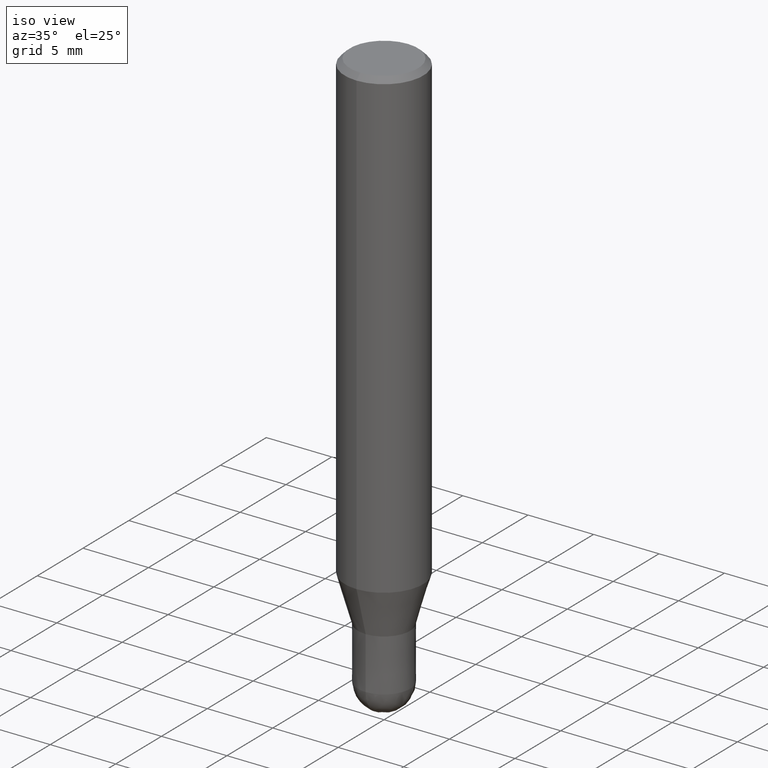
[diagram: clean part render]
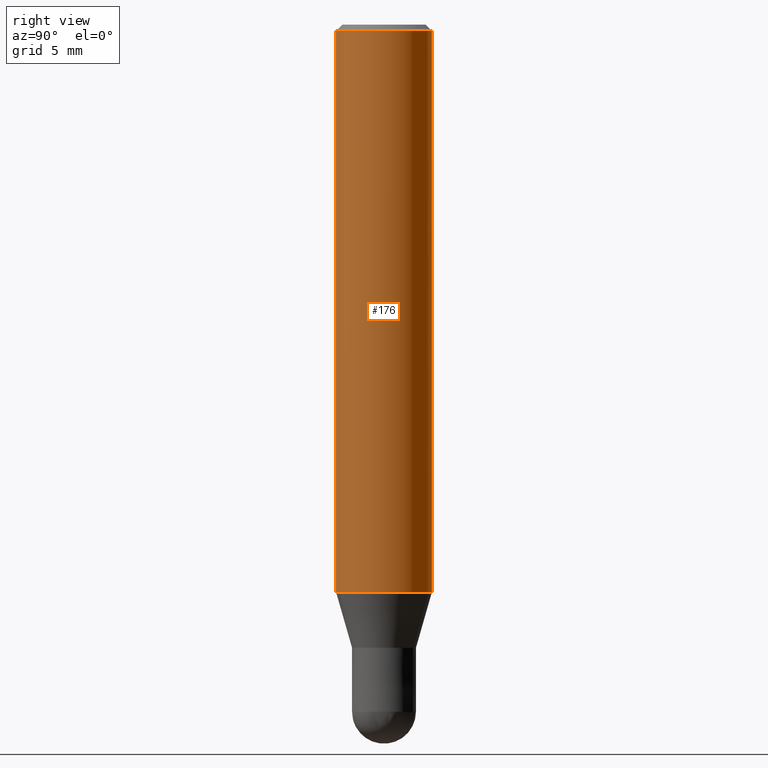
[diagram: tour spotlight — one face highlighted and labeled with its STEP entity id]
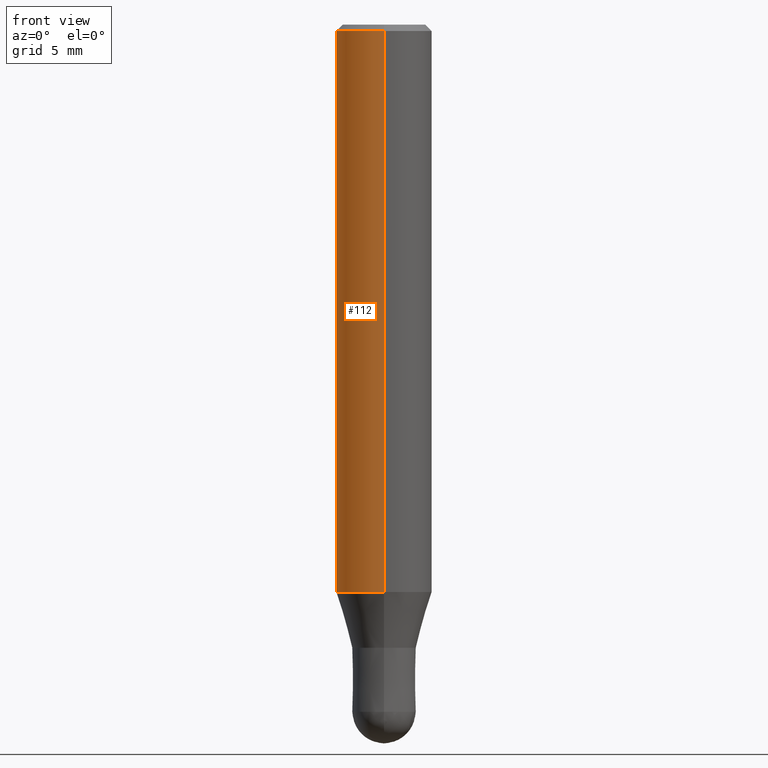
[diagram: tour spotlight — one face highlighted and labeled with its STEP entity id]
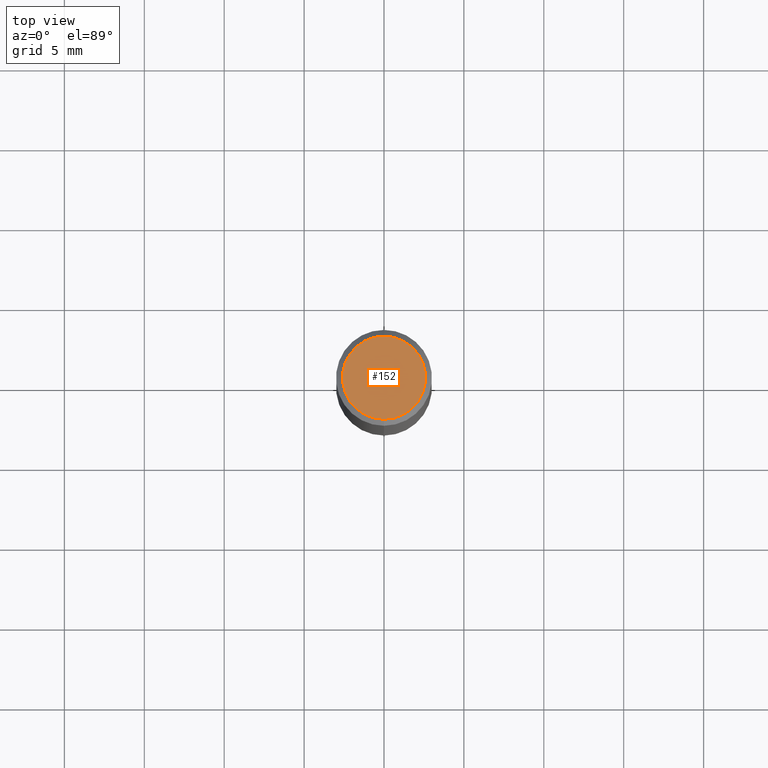
[diagram: tour spotlight — one face highlighted and labeled with its STEP entity id]
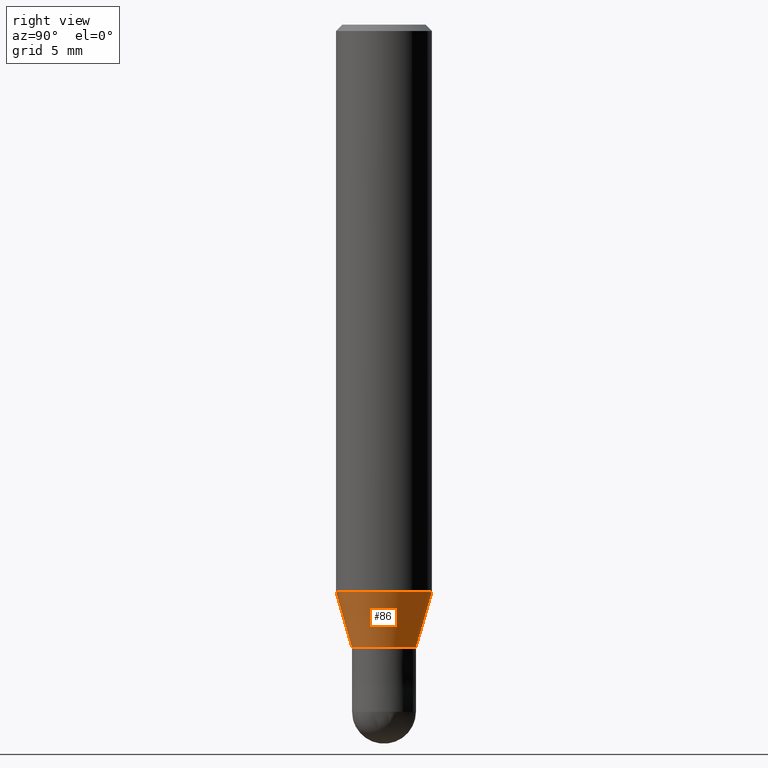
[diagram: tour spotlight — one face highlighted and labeled with its STEP entity id]
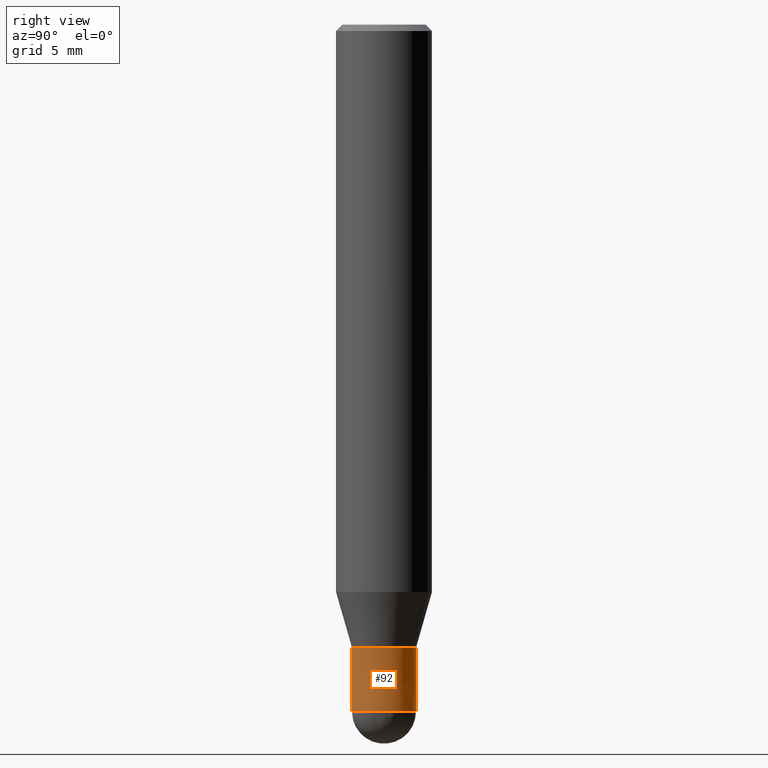
[diagram: tour spotlight — one face highlighted and labeled with its STEP entity id]
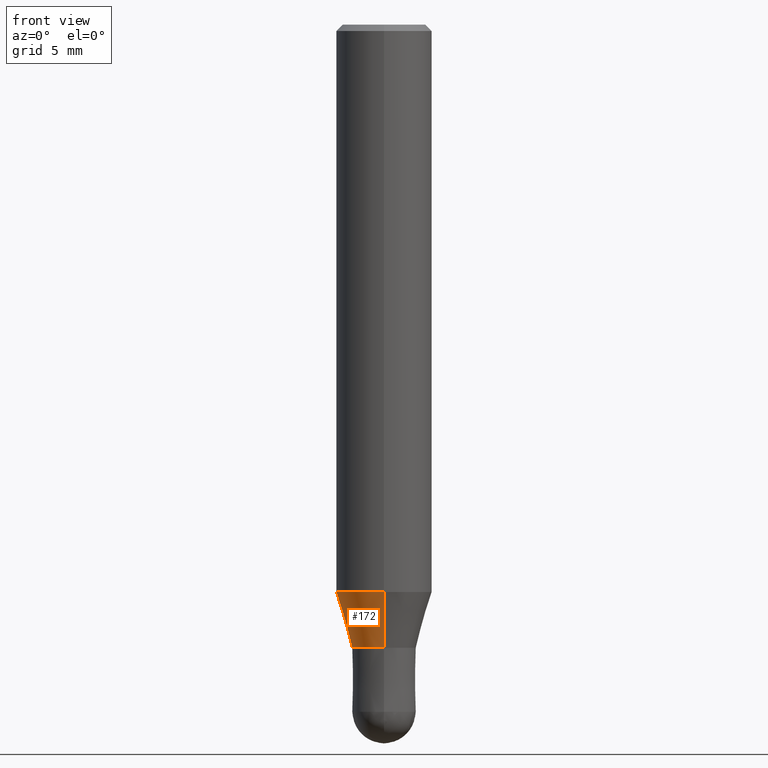
[diagram: tour spotlight — one face highlighted and labeled with its STEP entity id]
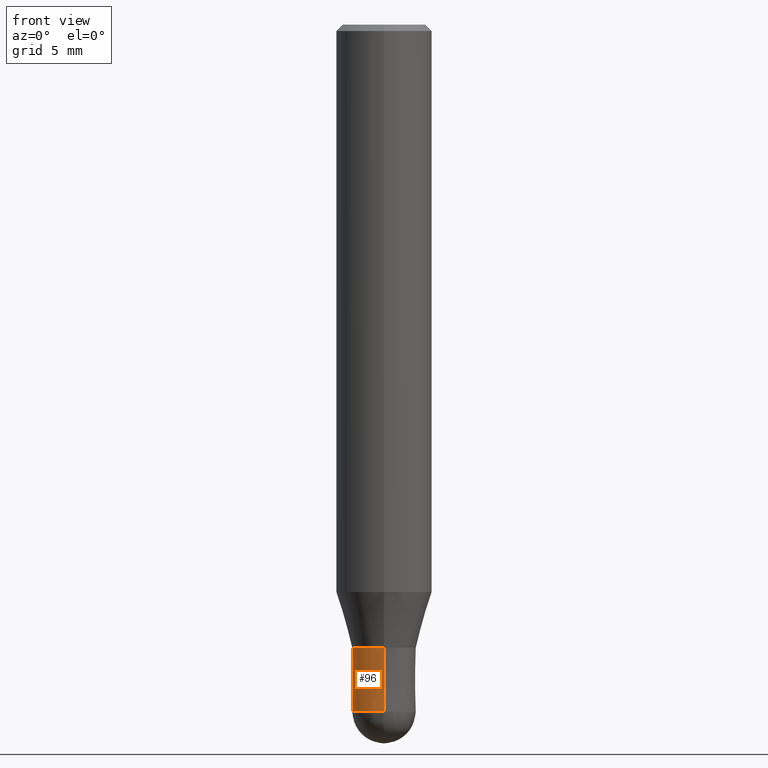
[diagram: tour spotlight — one face highlighted and labeled with its STEP entity id]
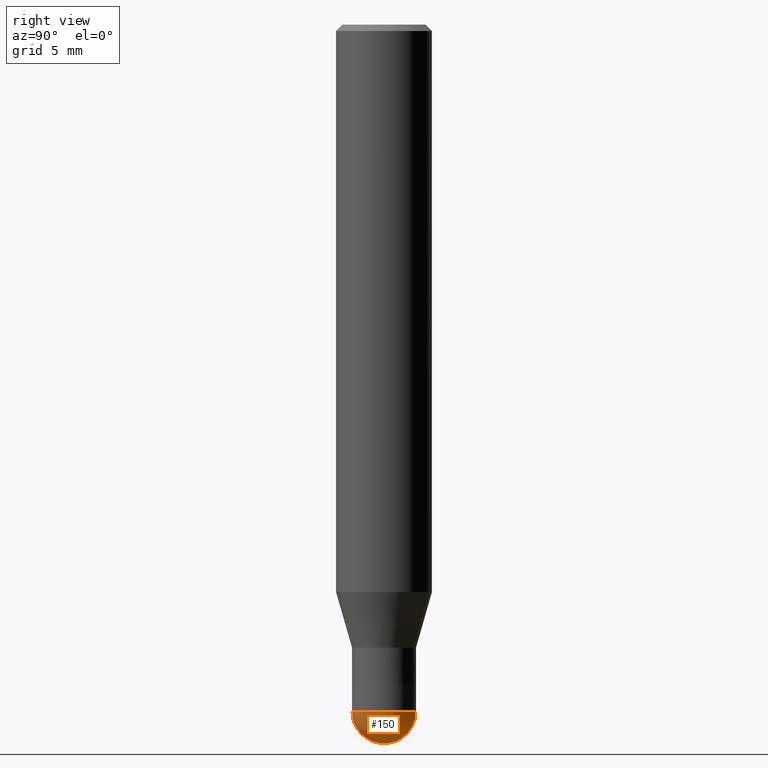
[diagram: tour spotlight — one face highlighted and labeled with its STEP entity id]
A machine part: a face-by-face anatomy tour. The part has 14 B-rep faces; the first image is the clean iso view, then the 8 largest visible faces are spotlighted one at a time (largest first), each with its STEP entity span.

Face 1 — right view, entity #176. In plain terms, the highlighted cylindrical surface (partial cylindrical patch) has radius 3 mm, axis along (-0, -0, 1).
Definition (entity closure, byte-faithful):
#100=VERTEX_POINT('',#228);
#106=EDGE_CURVE('',#156,#174,#235,.T.);
#110=EDGE_CURVE('',#100,#156,#239,.T.);
#118=EDGE_CURVE('',#168,#100,#248,.T.);
#148=EDGE_CURVE('',#168,#174,#282,.T.);
#156=VERTEX_POINT('',#292);
#168=VERTEX_POINT('',#304);
#174=VERTEX_POINT('',#311);
#176=ADVANCED_FACE('',(#313),#314,.T.);
#228=CARTESIAN_POINT('',(0.0,3.0,-35.513));
#235=LINE('',#371,#372);
#239=CIRCLE('',#378,3.0);
#248=LINE('',#390,#391);
#282=CIRCLE('',#437,3.0);
#292=CARTESIAN_POINT('',(3.67381906146713E-016,-3.0,-35.513));
#304=CARTESIAN_POINT('',(0.0,3.0,-0.399999999999999));
#311=CARTESIAN_POINT('',(3.67381906146713E-016,-3.0,-0.399999999999999));
#313=FACE_OUTER_BOUND('',#471,.T.);
#314=CYLINDRICAL_SURFACE('',#472,3.0);
#371=CARTESIAN_POINT('',(3.67381906146713E-016,-3.0,-17.9565));
#372=VECTOR('',#531,1.0);
#378=AXIS2_PLACEMENT_3D('',#535,#536,#537);
#390=CARTESIAN_POINT('',(-3.67381906146713E-016,3.0,-17.9565));
#391=VECTOR('',#552,1.0);
#437=AXIS2_PLACEMENT_3D('',#596,#597,#598);
#471=EDGE_LOOP('',(#624,#625,#626,#627));
#472=AXIS2_PLACEMENT_3D('',#628,#629,#630);
#531=DIRECTION('',(-0.0,-0.0,1.0));
#535=CARTESIAN_POINT('',(0.0,0.0,-35.513));
#536=DIRECTION('',(0.0,0.0,-1.0));
#537=DIRECTION('',(0.0,1.0,0.0));
#552=DIRECTION('',(0.0,0.0,-1.0));
#596=CARTESIAN_POINT('',(0.0,0.0,-0.399999999999999));
#597=DIRECTION('',(0.0,0.0,-1.0));
#598=DIRECTION('',(0.0,1.0,0.0));
#624=ORIENTED_EDGE('',*,*,#118,.F.);
#625=ORIENTED_EDGE('',*,*,#148,.T.);
#626=ORIENTED_EDGE('',*,*,#106,.F.);
#627=ORIENTED_EDGE('',*,*,#110,.F.);
#628=CARTESIAN_POINT('',(0.0,0.0,-17.9565));
#629=DIRECTION('',(-0.0,-0.0,1.0));
#630=DIRECTION('',(0.0,1.0,0.0));

Face 2 — front view, entity #112. In plain terms, the highlighted cylindrical surface (partial cylindrical patch) has radius 3 mm, axis along (-0, -0, 1).
Definition (entity closure, byte-faithful):
#100=VERTEX_POINT('',#228);
#106=EDGE_CURVE('',#156,#174,#235,.T.);
#112=ADVANCED_FACE('',(#241),#242,.T.);
#118=EDGE_CURVE('',#168,#100,#248,.T.);
#132=EDGE_CURVE('',#174,#168,#262,.T.);
#156=VERTEX_POINT('',#292);
#164=EDGE_CURVE('',#156,#100,#300,.T.);
#168=VERTEX_POINT('',#304);
#174=VERTEX_POINT('',#311);
#228=CARTESIAN_POINT('',(0.0,3.0,-35.513));
#235=LINE('',#371,#372);
#241=FACE_OUTER_BOUND('',#380,.T.);
#242=CYLINDRICAL_SURFACE('',#381,3.0);
#248=LINE('',#390,#391);
#262=CIRCLE('',#413,3.0);
#292=CARTESIAN_POINT('',(3.67381906146713E-016,-3.0,-35.513));
#300=CIRCLE('',#456,3.0);
#304=CARTESIAN_POINT('',(0.0,3.0,-0.399999999999999));
#311=CARTESIAN_POINT('',(3.67381906146713E-016,-3.0,-0.399999999999999));
#371=CARTESIAN_POINT('',(3.67381906146713E-016,-3.0,-17.9565));
#372=VECTOR('',#531,1.0);
#380=EDGE_LOOP('',(#539,#540,#541,#542));
#381=AXIS2_PLACEMENT_3D('',#543,#544,#545);
#390=CARTESIAN_POINT('',(-3.67381906146713E-016,3.0,-17.9565));
#391=VECTOR('',#552,1.0);
#413=AXIS2_PLACEMENT_3D('',#564,#565,#566);
#456=AXIS2_PLACEMENT_3D('',#611,#612,#613);
#531=DIRECTION('',(-0.0,-0.0,1.0));
#539=ORIENTED_EDGE('',*,*,#118,.T.);
#540=ORIENTED_EDGE('',*,*,#164,.F.);
#541=ORIENTED_EDGE('',*,*,#106,.T.);
#542=ORIENTED_EDGE('',*,*,#132,.T.);
#543=CARTESIAN_POINT('',(0.0,0.0,-17.9565));
#544=DIRECTION('',(-0.0,-0.0,1.0));
#545=DIRECTION('',(0.0,1.0,0.0));
#552=DIRECTION('',(0.0,0.0,-1.0));
#564=CARTESIAN_POINT('',(0.0,0.0,-0.399999999999999));
#565=DIRECTION('',(0.0,0.0,-1.0));
#566=DIRECTION('',(0.0,1.0,0.0));
#611=CARTESIAN_POINT('',(0.0,0.0,-35.513));
#612=DIRECTION('',(0.0,0.0,-1.0));
#613=DIRECTION('',(0.0,1.0,0.0));

Face 3 — top view, entity #152. In plain terms, the highlighted planar face has unit normal (-0, 0, 1).
Definition (entity closure, byte-faithful):
#88=EDGE_CURVE('',#180,#102,#214,.T.);
#102=VERTEX_POINT('',#230);
#136=EDGE_CURVE('',#102,#180,#267,.T.);
#152=ADVANCED_FACE('',(#287),#288,.T.);
#180=VERTEX_POINT('',#319);
#214=CIRCLE('',#347,2.6);
#230=CARTESIAN_POINT('',(3.18397651993818E-016,-2.6,0.0));
#267=CIRCLE('',#419,2.6);
#287=FACE_OUTER_BOUND('',#442,.T.);
#288=PLANE('',#443);
#319=CARTESIAN_POINT('',(0.0,2.6,0.0));
#347=AXIS2_PLACEMENT_3D('',#501,#502,#503);
#419=AXIS2_PLACEMENT_3D('',#573,#574,#575);
#442=EDGE_LOOP('',(#606,#607));
#443=AXIS2_PLACEMENT_3D('',#608,#609,#610);
#501=CARTESIAN_POINT('',(0.0,0.0,0.0));
#502=DIRECTION('',(0.0,0.0,-1.0));
#503=DIRECTION('',(0.0,1.0,0.0));
#573=CARTESIAN_POINT('',(0.0,0.0,0.0));
#574=DIRECTION('',(0.0,0.0,-1.0));
#575=DIRECTION('',(0.0,1.0,0.0));
#606=ORIENTED_EDGE('',*,*,#88,.F.);
#607=ORIENTED_EDGE('',*,*,#136,.F.);
#608=CARTESIAN_POINT('',(0.0,1.3,0.0));
#609=DIRECTION('',(-0.0,0.0,1.0));
#610=DIRECTION('',(0.0,-1.0,0.0));

Face 4 — right view, entity #86. In plain terms, the highlighted conical surface has half-angle 16.002 deg.
Definition (entity closure, byte-faithful):
#86=ADVANCED_FACE('',(#211),#212,.T.);
#90=EDGE_CURVE('',#142,#154,#216,.T.);
#94=EDGE_CURVE('',#142,#162,#221,.T.);
#126=VERTEX_POINT('',#256);
#130=EDGE_CURVE('',#162,#126,#260,.T.);
#142=VERTEX_POINT('',#275);
#154=VERTEX_POINT('',#290);
#162=VERTEX_POINT('',#298);
#184=EDGE_CURVE('',#126,#154,#323,.T.);
#211=FACE_OUTER_BOUND('',#343,.T.);
#212=CONICAL_SURFACE('',#344,2.49995,0.279284171542493);
#216=CIRCLE('',#350,2.99995);
#221=LINE('',#356,#357);
#256=CARTESIAN_POINT('',(2.44915147732706E-016,-1.99995,-39.0));
#260=CIRCLE('',#410,1.99995);
#275=CARTESIAN_POINT('',(0.0,2.99995,-35.513));
#290=CARTESIAN_POINT('',(3.67375783114944E-016,-2.99995,-35.513));
#298=CARTESIAN_POINT('',(0.0,1.99995,-39.0));
#323=LINE('',#482,#483);
#343=EDGE_LOOP('',(#494,#495,#496,#497));
#344=AXIS2_PLACEMENT_3D('',#498,#499,#500);
#350=AXIS2_PLACEMENT_3D('',#504,#505,#506);
#356=CARTESIAN_POINT('',(-3.06145465423825E-016,2.49995,-37.2565));
#357=VECTOR('',#515,1.0);
#410=AXIS2_PLACEMENT_3D('',#561,#562,#563);
#482=CARTESIAN_POINT('',(3.06145465423825E-016,-2.49995,-37.2565));
#483=VECTOR('',#639,1.0);
#494=ORIENTED_EDGE('',*,*,#94,.F.);
#495=ORIENTED_EDGE('',*,*,#90,.T.);
#496=ORIENTED_EDGE('',*,*,#184,.F.);
#497=ORIENTED_EDGE('',*,*,#130,.F.);
#498=CARTESIAN_POINT('',(0.0,0.0,-37.2565));
#499=DIRECTION('',(-0.0,-0.0,1.0));
#500=DIRECTION('',(0.0,1.0,0.0));
#504=CARTESIAN_POINT('',(0.0,0.0,-35.513));
#505=DIRECTION('',(0.0,0.0,-1.0));
#506=DIRECTION('',(0.0,1.0,0.0));
#515=DIRECTION('',(3.3758432755158E-017,-0.275667626987133,-0.961253015304131));
#561=CARTESIAN_POINT('',(0.0,0.0,-39.0));
#562=DIRECTION('',(0.0,0.0,-1.0));
#563=DIRECTION('',(0.0,1.0,0.0));
#639=DIRECTION('',(3.3758432755158E-017,-0.275667626987133,0.961253015304131));

Face 5 — right view, entity #92. In plain terms, the highlighted conical surface has half-angle 0.001 deg.
Definition (entity closure, byte-faithful):
#92=ADVANCED_FACE('',(#218),#219,.T.);
#120=EDGE_CURVE('',#160,#182,#250,.T.);
#128=EDGE_CURVE('',#160,#170,#258,.T.);
#138=EDGE_CURVE('',#170,#158,#269,.T.);
#158=VERTEX_POINT('',#294);
#160=VERTEX_POINT('',#296);
#166=EDGE_CURVE('',#158,#182,#302,.T.);
#170=VERTEX_POINT('',#306);
#182=VERTEX_POINT('',#321);
#218=FACE_OUTER_BOUND('',#352,.T.);
#219=CONICAL_SURFACE('',#353,1.99995,2.49999999947889E-005);
#250=CIRCLE('',#394,1.9999);
#258=LINE('',#406,#407);
#269=CIRCLE('',#422,2.0);
#294=CARTESIAN_POINT('',(2.44921270764475E-016,-2.0,-43.0));
#296=CARTESIAN_POINT('',(0.0,1.9999,-39.0));
#302=LINE('',#459,#460);
#306=CARTESIAN_POINT('',(0.0,2.0,-43.0));
#321=CARTESIAN_POINT('',(2.44909024700937E-016,-1.9999,-39.0));
#352=EDGE_LOOP('',(#508,#509,#510,#511));
#353=AXIS2_PLACEMENT_3D('',#512,#513,#514);
#394=AXIS2_PLACEMENT_3D('',#553,#554,#555);
#406=CARTESIAN_POINT('',(-2.44915147732706E-016,1.99995,-41.0));
#407=VECTOR('',#560,1.0);
#422=AXIS2_PLACEMENT_3D('',#576,#577,#578);
#459=CARTESIAN_POINT('',(2.44915147732706E-016,-1.99995,-41.0));
#460=VECTOR('',#614,1.0);
#508=ORIENTED_EDGE('',*,*,#128,.F.);
#509=ORIENTED_EDGE('',*,*,#120,.T.);
#510=ORIENTED_EDGE('',*,*,#166,.F.);
#511=ORIENTED_EDGE('',*,*,#138,.F.);
#512=CARTESIAN_POINT('',(0.0,0.0,-41.0));
#513=DIRECTION('',(0.0,-0.0,-1.0));
#514=DIRECTION('',(0.0,1.0,0.0));
#553=CARTESIAN_POINT('',(0.0,0.0,-39.0));
#554=DIRECTION('',(0.0,0.0,-1.0));
#555=DIRECTION('',(0.0,1.0,0.0));
#560=DIRECTION('',(-3.06151588359888E-021,2.49999999921848E-005,-0.9999999996875));
#576=CARTESIAN_POINT('',(0.0,0.0,-43.0));
#577=DIRECTION('',(0.0,0.0,-1.0));
#578=DIRECTION('',(0.0,1.0,0.0));
#614=DIRECTION('',(-3.06151588359888E-021,2.49999999921848E-005,0.9999999996875));

Face 6 — front view, entity #172. In plain terms, the highlighted conical surface has half-angle 16.002 deg.
Definition (entity closure, byte-faithful):
#94=EDGE_CURVE('',#142,#162,#221,.T.);
#108=EDGE_CURVE('',#126,#162,#237,.T.);
#126=VERTEX_POINT('',#256);
#142=VERTEX_POINT('',#275);
#144=EDGE_CURVE('',#154,#142,#277,.T.);
#154=VERTEX_POINT('',#290);
#162=VERTEX_POINT('',#298);
#172=ADVANCED_FACE('',(#308),#309,.T.);
#184=EDGE_CURVE('',#126,#154,#323,.T.);
#221=LINE('',#356,#357);
#237=CIRCLE('',#375,1.99995);
#256=CARTESIAN_POINT('',(2.44915147732706E-016,-1.99995,-39.0));
#275=CARTESIAN_POINT('',(0.0,2.99995,-35.513));
#277=CIRCLE('',#431,2.99995);
#290=CARTESIAN_POINT('',(3.67375783114944E-016,-2.99995,-35.513));
#298=CARTESIAN_POINT('',(0.0,1.99995,-39.0));
#308=FACE_OUTER_BOUND('',#466,.T.);
#309=CONICAL_SURFACE('',#467,2.49995,0.279284171542493);
#323=LINE('',#482,#483);
#356=CARTESIAN_POINT('',(-3.06145465423825E-016,2.49995,-37.2565));
#357=VECTOR('',#515,1.0);
#375=AXIS2_PLACEMENT_3D('',#532,#533,#534);
#431=AXIS2_PLACEMENT_3D('',#587,#588,#589);
#466=EDGE_LOOP('',(#616,#617,#618,#619));
#467=AXIS2_PLACEMENT_3D('',#620,#621,#622);
#482=CARTESIAN_POINT('',(3.06145465423825E-016,-2.49995,-37.2565));
#483=VECTOR('',#639,1.0);
#515=DIRECTION('',(3.3758432755158E-017,-0.275667626987133,-0.961253015304131));
#532=CARTESIAN_POINT('',(0.0,0.0,-39.0));
#533=DIRECTION('',(0.0,0.0,-1.0));
#534=DIRECTION('',(0.0,1.0,0.0));
#587=CARTESIAN_POINT('',(0.0,0.0,-35.513));
#588=DIRECTION('',(0.0,0.0,-1.0));
#589=DIRECTION('',(0.0,1.0,0.0));
#616=ORIENTED_EDGE('',*,*,#94,.T.);
#617=ORIENTED_EDGE('',*,*,#108,.F.);
#618=ORIENTED_EDGE('',*,*,#184,.T.);
#619=ORIENTED_EDGE('',*,*,#144,.T.);
#620=CARTESIAN_POINT('',(0.0,0.0,-37.2565));
#621=DIRECTION('',(-0.0,-0.0,1.0));
#622=DIRECTION('',(0.0,1.0,0.0));
#639=DIRECTION('',(3.3758432755158E-017,-0.275667626987133,0.961253015304131));

Face 7 — front view, entity #96. In plain terms, the highlighted conical surface has half-angle 0.001 deg.
Definition (entity closure, byte-faithful):
#96=ADVANCED_FACE('',(#223),#224,.T.);
#116=EDGE_CURVE('',#158,#170,#246,.T.);
#124=EDGE_CURVE('',#182,#160,#254,.T.);
#128=EDGE_CURVE('',#160,#170,#258,.T.);
#158=VERTEX_POINT('',#294);
#160=VERTEX_POINT('',#296);
#166=EDGE_CURVE('',#158,#182,#302,.T.);
#170=VERTEX_POINT('',#306);
#182=VERTEX_POINT('',#321);
#223=FACE_OUTER_BOUND('',#359,.T.);
#224=CONICAL_SURFACE('',#360,1.99995,2.49999999947889E-005);
#246=CIRCLE('',#387,2.0);
#254=CIRCLE('',#401,1.9999);
#258=LINE('',#406,#407);
#294=CARTESIAN_POINT('',(2.44921270764475E-016,-2.0,-43.0));
#296=CARTESIAN_POINT('',(0.0,1.9999,-39.0));
#302=LINE('',#459,#460);
#306=CARTESIAN_POINT('',(0.0,2.0,-43.0));
#321=CARTESIAN_POINT('',(2.44909024700937E-016,-1.9999,-39.0));
#359=EDGE_LOOP('',(#517,#518,#519,#520));
#360=AXIS2_PLACEMENT_3D('',#521,#522,#523);
#387=AXIS2_PLACEMENT_3D('',#549,#550,#551);
#401=AXIS2_PLACEMENT_3D('',#557,#558,#559);
#406=CARTESIAN_POINT('',(-2.44915147732706E-016,1.99995,-41.0));
#407=VECTOR('',#560,1.0);
#459=CARTESIAN_POINT('',(2.44915147732706E-016,-1.99995,-41.0));
#460=VECTOR('',#614,1.0);
#517=ORIENTED_EDGE('',*,*,#128,.T.);
#518=ORIENTED_EDGE('',*,*,#116,.F.);
#519=ORIENTED_EDGE('',*,*,#166,.T.);
#520=ORIENTED_EDGE('',*,*,#124,.T.);
#521=CARTESIAN_POINT('',(0.0,0.0,-41.0));
#522=DIRECTION('',(0.0,-0.0,-1.0));
#523=DIRECTION('',(0.0,1.0,0.0));
#549=CARTESIAN_POINT('',(0.0,0.0,-43.0));
#550=DIRECTION('',(0.0,0.0,-1.0));
#551=DIRECTION('',(0.0,1.0,0.0));
#557=CARTESIAN_POINT('',(0.0,0.0,-39.0));
#558=DIRECTION('',(0.0,0.0,-1.0));
#559=DIRECTION('',(0.0,1.0,0.0));
#560=DIRECTION('',(-3.06151588359888E-021,2.49999999921848E-005,-0.9999999996875));
#614=DIRECTION('',(-3.06151588359888E-021,2.49999999921848E-005,0.9999999996875));

Face 8 — right view, entity #150. In plain terms, the highlighted spherical surface has radius 2 mm.
Definition (entity closure, byte-faithful):
#114=EDGE_CURVE('',#158,#170,#244,.T.);
#138=EDGE_CURVE('',#170,#158,#269,.T.);
#150=ADVANCED_FACE('',(#284),#285,.T.);
#158=VERTEX_POINT('',#294);
#170=VERTEX_POINT('',#306);
#244=CIRCLE('',#384,2.0);
#269=CIRCLE('',#422,2.0);
#284=FACE_OUTER_BOUND('',#439,.T.);
#285=SPHERICAL_SURFACE('',#440,2.0);
#294=CARTESIAN_POINT('',(2.44921270764475E-016,-2.0,-43.0));
#306=CARTESIAN_POINT('',(0.0,2.0,-43.0));
#384=AXIS2_PLACEMENT_3D('',#546,#547,#548);
#422=AXIS2_PLACEMENT_3D('',#576,#577,#578);
#439=EDGE_LOOP('',(#600,#601));
#440=AXIS2_PLACEMENT_3D('',#602,#603,#604);
#546=CARTESIAN_POINT('',(0.0,0.0,-43.0));
#547=DIRECTION('',(1.0,0.0,1.22460635382238E-016));
#548=DIRECTION('',(-1.22460635382238E-016,0.0,1.0));
#576=CARTESIAN_POINT('',(0.0,0.0,-43.0));
#577=DIRECTION('',(0.0,0.0,-1.0));
#578=DIRECTION('',(0.0,1.0,0.0));
#600=ORIENTED_EDGE('',*,*,#114,.T.);
#601=ORIENTED_EDGE('',*,*,#138,.T.);
#602=CARTESIAN_POINT('',(0.0,0.0,-43.0));
#603=DIRECTION('',(0.0,1.0,0.0));
#604=DIRECTION('',(0.0,0.0,-1.0));